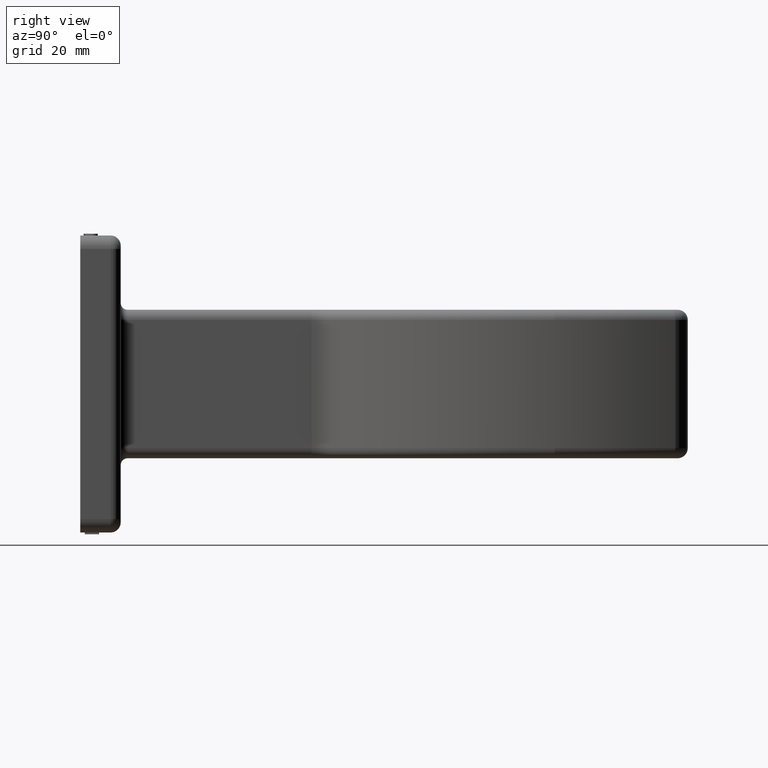
[diagram: clean part render]
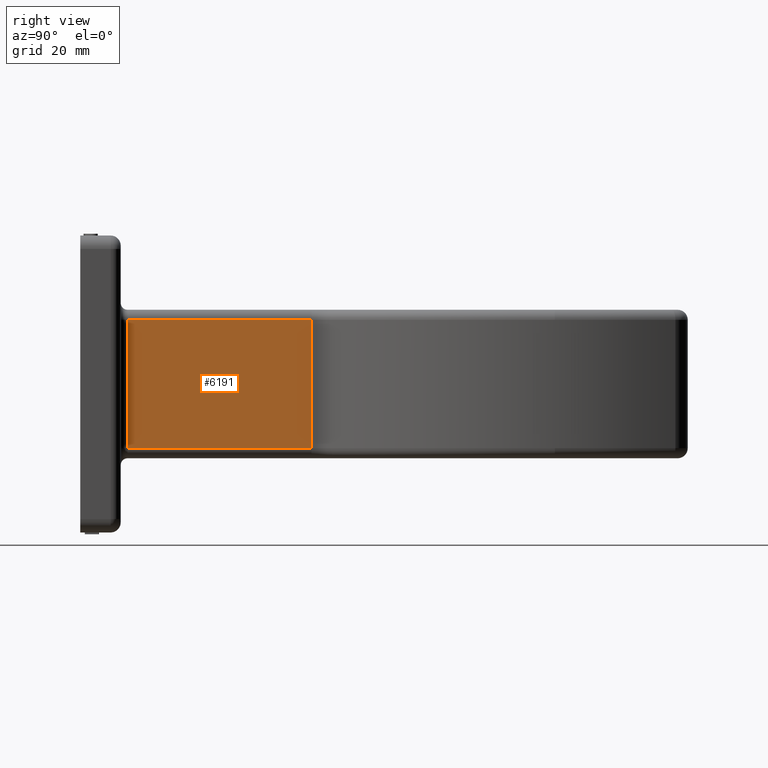
[diagram: same view with one face highlighted and labeled with its STEP entity id]
A machine part, right view. The second image highlights one B-rep face of the part: STEP entity #6191.
In plain terms, the highlighted planar face has unit normal (1, -0, 0).
Its self-contained STEP definition (entity closure, byte-faithful):
#2645 = VECTOR ( 'NONE', #2812, 39.37007874015748100 ) ;
#2812 = DIRECTION ( 'NONE',  ( 0.0000000000000000000, 0.0000000000000000000, -1.000000000000000000 ) ) ;
#2817 = CARTESIAN_POINT ( 'NONE',  ( 0.3124999999999998300, 0.4374999999999998900, -0.5937500000000000000 ) ) ;
#4324 = DIRECTION ( 'NONE',  ( -7.284927983104699900E-016, -1.000000000000000000, 0.0000000000000000000 ) ) ;
#4862 = CARTESIAN_POINT ( 'NONE',  ( 0.3125000000000010500, 2.140823379455575100, -0.5937499999999998900 ) ) ;
#5282 = CARTESIAN_POINT ( 'NONE',  ( 0.3125000000000011100, 2.250000000000000400, 0.6875000000000000000 ) ) ;
#5871 = LINE ( 'NONE', #12419, #8431 ) ;
#6191 = ADVANCED_FACE ( 'NONE', ( #13504 ), #9658, .T. ) ;
#6391 = DIRECTION ( 'NONE',  ( 7.284927983104699900E-016, 1.000000000000000000, 0.0000000000000000000 ) ) ;
#6546 = EDGE_CURVE ( 'NONE', #14017, #10901, #11426, .T. ) ;
#7127 = EDGE_CURVE ( 'NONE', #9776, #14017, #13119, .T. ) ;
#7298 = AXIS2_PLACEMENT_3D ( 'NONE', #5282, #12998, #6391 ) ;
#7518 = ORIENTED_EDGE ( 'NONE', *, *, #7127, .T. ) ;
#8015 = DIRECTION ( 'NONE',  ( 0.0000000000000000000, 0.0000000000000000000, 1.000000000000000000 ) ) ;
#8268 = LINE ( 'NONE', #9395, #10833 ) ;
#8278 = CARTESIAN_POINT ( 'NONE',  ( 0.3124999999999998300, 0.4374999999999998900, 0.6875000000000000000 ) ) ;
#8431 = VECTOR ( 'NONE', #8015, 39.37007874015748100 ) ;
#8530 = VERTEX_POINT ( 'NONE', #4862 ) ;
#8809 = CARTESIAN_POINT ( 'NONE',  ( 0.3125000000000010500, 2.140823379455575100, 0.5937500000000000000 ) ) ;
#9135 = ORIENTED_EDGE ( 'NONE', *, *, #10409, .T. ) ;
#9395 = CARTESIAN_POINT ( 'NONE',  ( 0.3125000000000010500, 2.140823379455575100, -0.5937500000000000000 ) ) ;
#9416 = ORIENTED_EDGE ( 'NONE', *, *, #10927, .T. ) ;
#9658 = PLANE ( 'NONE',  #7298 ) ;
#9776 = VERTEX_POINT ( 'NONE', #8809 ) ;
#10095 = ORIENTED_EDGE ( 'NONE', *, *, #6546, .T. ) ;
#10409 = EDGE_CURVE ( 'NONE', #8530, #9776, #5871, .T. ) ;
#10541 = CARTESIAN_POINT ( 'NONE',  ( 0.3124999999999998300, 0.4374999999999998900, 0.5937500000000000000 ) ) ;
#10833 = VECTOR ( 'NONE', #13927, 39.37007874015748100 ) ;
#10901 = VERTEX_POINT ( 'NONE', #2817 ) ;
#10916 = CARTESIAN_POINT ( 'NONE',  ( 0.3125000000000011100, 2.250000000000000400, 0.5937500000000000000 ) ) ;
#10927 = EDGE_CURVE ( 'NONE', #10901, #8530, #8268, .T. ) ;
#11426 = LINE ( 'NONE', #8278, #2645 ) ;
#11865 = EDGE_LOOP ( 'NONE', ( #7518, #10095, #9416, #9135 ) ) ;
#12419 = CARTESIAN_POINT ( 'NONE',  ( 0.3125000000000010500, 2.140823379455575100, 0.6875000000000000000 ) ) ;
#12998 = DIRECTION ( 'NONE',  ( 1.000000000000000000, -7.284927983104699900E-016, 0.0000000000000000000 ) ) ;
#13119 = LINE ( 'NONE', #10916, #13837 ) ;
#13504 = FACE_OUTER_BOUND ( 'NONE', #11865, .T. ) ;
#13837 = VECTOR ( 'NONE', #4324, 39.37007874015748100 ) ;
#13927 = DIRECTION ( 'NONE',  ( 7.284927983104699900E-016, 1.000000000000000000, -0.0000000000000000000 ) ) ;
#14017 = VERTEX_POINT ( 'NONE', #10541 ) ;